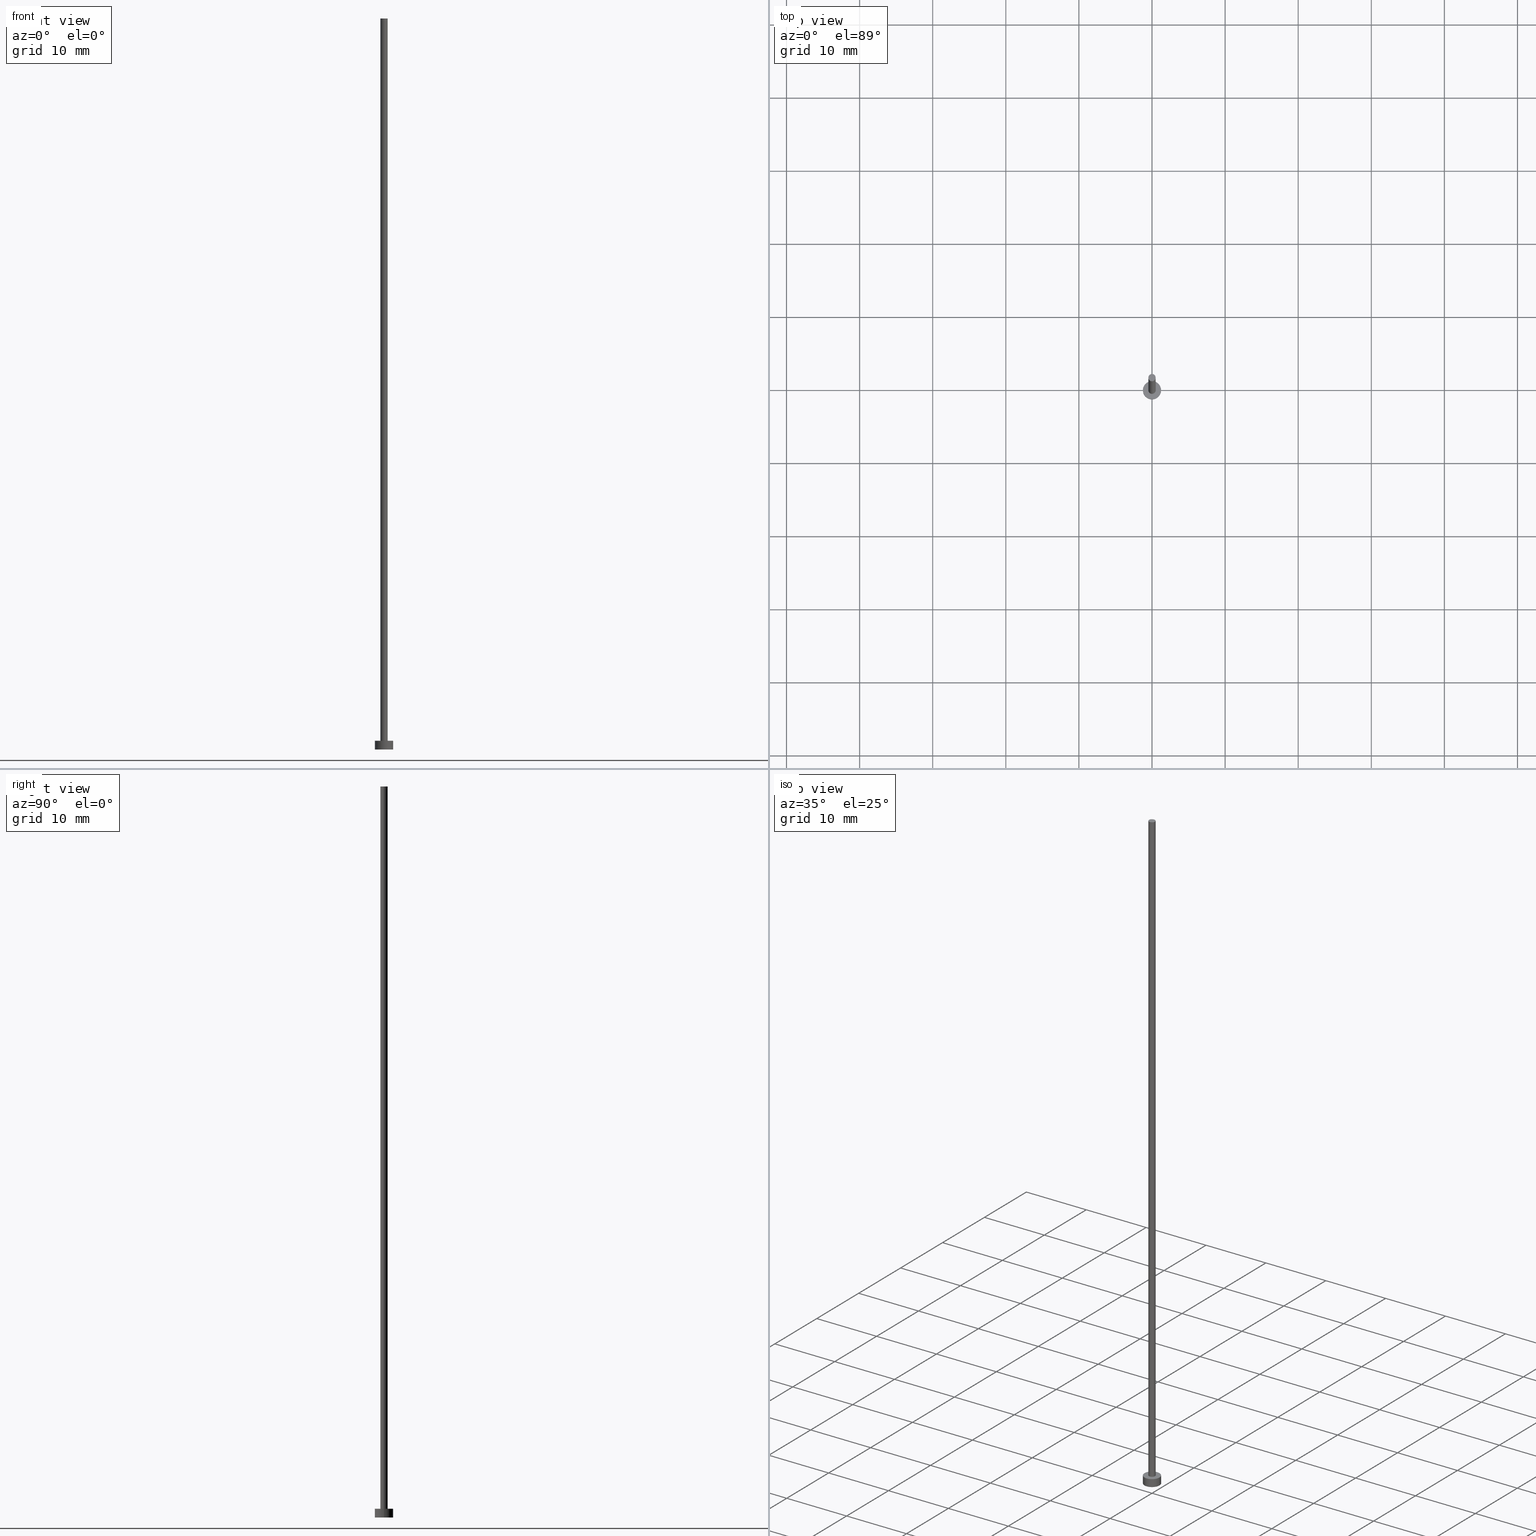
[diagram: canonical four-view strip — front | top / right | iso, engineering-drawing reading convention]
A machine part, canonical four-view strip (front | top / right | iso — engineering-drawing reading convention). The complete STEP part file that produces these views, byte-faithful:
ISO-10303-21;
HEADER;
FILE_DESCRIPTION (( 'STEP AP203' ),
    '1' );
FILE_NAME ('a3bb.STEP',
    '2025-01-24T12:53:52',
    ( '' ),
    ( '' ),
    'SwSTEP 2.0',
    'SolidWorks 2019',
    '' );
FILE_SCHEMA (( 'CONFIG_CONTROL_DESIGN' ));
ENDSEC;

DATA;
#1 = VERTEX_POINT ( 'NONE', #65 ) ;
#2 = CARTESIAN_POINT ( 'NONE',  ( 0.000000000000000000, 0.000000000000000000, 100.0000000000000000 ) ) ;
#3 = CARTESIAN_POINT ( 'NONE',  ( 0.000000000000000000, 0.000000000000000000, 0.000000000000000000 ) ) ;
#4 = CARTESIAN_POINT ( 'NONE',  ( 1.250000000000000000, 1.530808498934191571E-16, 1.199999999999999956 ) ) ;
#5 = FACE_OUTER_BOUND ( 'NONE', #14, .T. ) ;
#6 = CYLINDRICAL_SURFACE ( 'NONE', #232, 1.250000000000000000 ) ;
#7 = AXIS2_PLACEMENT_3D ( 'NONE', #183, #46, #67 ) ;
#8 = DIRECTION ( 'NONE',  ( 1.000000000000000000, 0.000000000000000000, 0.000000000000000000 ) ) ;
#9 = APPROVAL_STATUS ( 'not_yet_approved' ) ;
#10 = ADVANCED_FACE ( 'NONE', ( #157 ), #105, .T. ) ;
#11 = DATE_AND_TIME ( #150, #161 ) ;
#12 = ORIENTED_EDGE ( 'NONE', *, *, #212, .F. ) ;
#13 = VECTOR ( 'NONE', #164, 1000.000000000000000 ) ;
#14 = EDGE_LOOP ( 'NONE', ( #117, #103 ) ) ;
#15 = ORIENTED_EDGE ( 'NONE', *, *, #143, .F. ) ;
#16 = VERTEX_POINT ( 'NONE', #251 ) ;
#17 = ADVANCED_FACE ( 'NONE', ( #61 ), #236, .T. ) ;
#18 = VECTOR ( 'NONE', #221, 1000.000000000000000 ) ;
#19 = VERTEX_POINT ( 'NONE', #139 ) ;
#20 = DIRECTION ( 'NONE',  ( -0.000000000000000000, -0.000000000000000000, -1.000000000000000000 ) ) ;
#21 = LOCAL_TIME ( 13, 53, 52.00000000000000000, #114 ) ;
#22 = DIRECTION ( 'NONE',  ( 0.000000000000000000, 0.000000000000000000, 1.000000000000000000 ) ) ;
#23 = FACE_OUTER_BOUND ( 'NONE', #33, .T. ) ;
#24 = DIRECTION ( 'NONE',  ( 1.000000000000000000, 0.000000000000000000, 0.000000000000000000 ) ) ;
#25 = LINE ( 'NONE', #87, #119 ) ;
#26 = CC_DESIGN_PERSON_AND_ORGANIZATION_ASSIGNMENT ( #134, #172, ( #239 ) ) ;
#27 = PERSON_AND_ORGANIZATION ( #88, #156 ) ;
#28 = AXIS2_PLACEMENT_3D ( 'NONE', #220, #184, #125 ) ;
#29 = APPLICATION_CONTEXT ( 'configuration controlled 3d designs of mechanical parts and assemblies' ) ;
#30 = EDGE_CURVE ( 'NONE', #255, #219, #165, .T. ) ;
#31 = APPROVAL_DATE_TIME ( #208, #247 ) ;
#32 = DIRECTION ( 'NONE',  ( 0.000000000000000000, 0.000000000000000000, 1.000000000000000000 ) ) ;
#33 = EDGE_LOOP ( 'NONE', ( #137, #39 ) ) ;
#34 = AXIS2_PLACEMENT_3D ( 'NONE', #102, #218, #235 ) ;
#35 = COORDINATED_UNIVERSAL_TIME_OFFSET ( 1, 0, .AHEAD. ) ;
#36 = ORIENTED_EDGE ( 'NONE', *, *, #106, .T. ) ;
#37 = APPROVAL ( #94, 'NEUR�EN�' ) ;
#38 = CIRCLE ( 'NONE', #129, 0.5000000000000000000 ) ;
#39 = ORIENTED_EDGE ( 'NONE', *, *, #203, .F. ) ;
#40 = ADVANCED_BREP_SHAPE_REPRESENTATION ( 'a3bb', ( #57, #229 ), #253 ) ;
#41 = ADVANCED_FACE ( 'NONE', ( #62, #140 ), #217, .T. ) ;
#42 = CARTESIAN_POINT ( 'NONE',  ( 0.000000000000000000, 0.000000000000000000, 100.0000000000000000 ) ) ;
#43 = ORIENTED_EDGE ( 'NONE', *, *, #143, .T. ) ;
#44 = AXIS2_PLACEMENT_3D ( 'NONE', #194, #176, #81 ) ;
#45 = CARTESIAN_POINT ( 'NONE',  ( -1.250000000000000000, 0.000000000000000000, 1.199999999999999956 ) ) ;
#46 = DIRECTION ( 'NONE',  ( -0.000000000000000000, -0.000000000000000000, -1.000000000000000000 ) ) ;
#47 = CC_DESIGN_APPROVAL ( #247, ( #209 ) ) ;
#48 = DIRECTION ( 'NONE',  ( 0.000000000000000000, 0.000000000000000000, 1.000000000000000000 ) ) ;
#49 = CARTESIAN_POINT ( 'NONE',  ( 1.250000000000000000, 1.530808498934191571E-16, 0.000000000000000000 ) ) ;
#50 = CARTESIAN_POINT ( 'NONE',  ( 0.000000000000000000, 0.000000000000000000, 1.199999999999999956 ) ) ;
#51 = PRODUCT ( 'a3bb', 'a3bb', '', ( #96 ) ) ;
#52 = CALENDAR_DATE ( 2025, 24, 1 ) ;
#53 = AXIS2_PLACEMENT_3D ( 'NONE', #200, #89, #201 ) ;
#54 = APPLICATION_PROTOCOL_DEFINITION ( 'international standard', 'config_control_design', 1994, #29 ) ;
#55 = AXIS2_PLACEMENT_3D ( 'NONE', #66, #110, #224 ) ;
#56 = PERSON_AND_ORGANIZATION ( #88, #156 ) ;
#57 = MANIFOLD_SOLID_BREP ( 'P�idat vysunut�m3', #148 ) ;
#58 = COORDINATED_UNIVERSAL_TIME_OFFSET ( 1, 0, .AHEAD. ) ;
#59 = AXIS2_PLACEMENT_3D ( 'NONE', #2, #178, #101 ) ;
#60 = EDGE_CURVE ( 'NONE', #219, #255, #144, .T. ) ;
#61 = FACE_OUTER_BOUND ( 'NONE', #170, .T. ) ;
#62 = FACE_BOUND ( 'NONE', #192, .T. ) ;
#63 = PRODUCT_RELATED_PRODUCT_CATEGORY ( 'detail', '', ( #51 ) ) ;
#64 = CARTESIAN_POINT ( 'NONE',  ( 0.000000000000000000, 0.000000000000000000, 1.199999999999999956 ) ) ;
#65 = CARTESIAN_POINT ( 'NONE',  ( 0.5000000000000000000, 6.123233995736766036E-17, 1.199999999999999956 ) ) ;
#66 = CARTESIAN_POINT ( 'NONE',  ( 0.000000000000000000, 0.000000000000000000, 1.199999999999999956 ) ) ;
#67 = DIRECTION ( 'NONE',  ( -1.000000000000000000, 0.000000000000000000, 0.000000000000000000 ) ) ;
#68 = DESIGN_CONTEXT ( 'detailed design', #29, 'design' ) ;
#69 = PLANE ( 'NONE',  #53 ) ;
#70 = CIRCLE ( 'NONE', #138, 1.250000000000000000 ) ;
#71 = LINE ( 'NONE', #202, #13 ) ;
#72 = EDGE_CURVE ( 'NONE', #19, #80, #79, .T. ) ;
#73 = CARTESIAN_POINT ( 'NONE',  ( 0.000000000000000000, 0.000000000000000000, 0.000000000000000000 ) ) ;
#74 = PERSON_AND_ORGANIZATION ( #88, #156 ) ;
#75 = DATE_AND_TIME ( #227, #21 ) ;
#76 = APPROVAL_ROLE ( '' ) ;
#77 = CC_DESIGN_SECURITY_CLASSIFICATION ( #189, ( #209 ) ) ;
#78 = APPROVAL_PERSON_ORGANIZATION ( #127, #37, #76 ) ;
#79 = CIRCLE ( 'NONE', #28, 1.250000000000000000 ) ;
#80 = VERTEX_POINT ( 'NONE', #122 ) ;
#81 = DIRECTION ( 'NONE',  ( 1.000000000000000000, 0.000000000000000000, 0.000000000000000000 ) ) ;
#82 = ORIENTED_EDGE ( 'NONE', *, *, #133, .F. ) ;
#83 = EDGE_LOOP ( 'NONE', ( #187, #237, #233, #15 ) ) ;
#84 = ORIENTED_EDGE ( 'NONE', *, *, #72, .F. ) ;
#85 = LINE ( 'NONE', #4, #18 ) ;
#86 = AXIS2_PLACEMENT_3D ( 'NONE', #3, #147, #242 ) ;
#87 = CARTESIAN_POINT ( 'NONE',  ( 0.5000000000000000000, 6.123233995736766036E-17, 100.0000000000000000 ) ) ;
#88 = PERSON ( 'NEUR�EN�', 'NEUR�EN�', 'NEUR�EN�', ('NEUR�EN�'), ('NEUR�EN�'), ('NEUR�EN�') ) ;
#89 = DIRECTION ( 'NONE',  ( 0.000000000000000000, 0.000000000000000000, 1.000000000000000000 ) ) ;
#90 = EDGE_CURVE ( 'NONE', #1, #16, #244, .T. ) ;
#91 = CARTESIAN_POINT ( 'NONE',  ( 0.000000000000000000, 0.000000000000000000, 1.199999999999999956 ) ) ;
#92 = AXIS2_PLACEMENT_3D ( 'NONE', #50, #22, #204 ) ;
#93 = COORDINATED_UNIVERSAL_TIME_OFFSET ( 1, 0, .AHEAD. ) ;
#94 = APPROVAL_STATUS ( 'not_yet_approved' ) ;
#95 = CC_DESIGN_PERSON_AND_ORGANIZATION_ASSIGNMENT ( #188, #210, ( #209 ) ) ;
#96 = MECHANICAL_CONTEXT ( 'NONE', #195, 'mechanical' ) ;
#97 = VERTEX_POINT ( 'NONE', #49 ) ;
#98 = DATE_TIME_ROLE ( 'classification_date' ) ;
#99 = EDGE_CURVE ( 'NONE', #16, #1, #38, .T. ) ;
#100 = CC_DESIGN_DATE_AND_TIME_ASSIGNMENT ( #75, #166, ( #239 ) ) ;
#101 = DIRECTION ( 'NONE',  ( -1.000000000000000000, 0.000000000000000000, 0.000000000000000000 ) ) ;
#102 = CARTESIAN_POINT ( 'NONE',  ( 0.000000000000000000, 0.000000000000000000, 100.0000000000000000 ) ) ;
#103 = ORIENTED_EDGE ( 'NONE', *, *, #30, .T. ) ;
#104 = AXIS2_PLACEMENT_3D ( 'NONE', #64, #197, #141 ) ;
#105 = CYLINDRICAL_SURFACE ( 'NONE', #59, 0.5000000000000000000 ) ;
#106 = EDGE_CURVE ( 'NONE', #19, #173, #160, .T. ) ;
#107 = PLANE ( 'NONE',  #181 ) ;
#108 = CC_DESIGN_APPROVAL ( #37, ( #239 ) ) ;
#109 = CYLINDRICAL_SURFACE ( 'NONE', #7, 1.250000000000000000 ) ;
#110 = DIRECTION ( 'NONE',  ( 0.000000000000000000, 0.000000000000000000, 1.000000000000000000 ) ) ;
#111 = DIRECTION ( 'NONE',  ( -1.000000000000000000, 0.000000000000000000, 0.000000000000000000 ) ) ;
#112 = LOCAL_TIME ( 13, 53, 52.00000000000000000, #58 ) ;
#113 = DIRECTION ( 'NONE',  ( 1.000000000000000000, 0.000000000000000000, 0.000000000000000000 ) ) ;
#114 = COORDINATED_UNIVERSAL_TIME_OFFSET ( 1, 0, .AHEAD. ) ;
#115 = AXIS2_PLACEMENT_3D ( 'NONE', #42, #223, #113 ) ;
#116 = CALENDAR_DATE ( 2025, 24, 1 ) ;
#117 = ORIENTED_EDGE ( 'NONE', *, *, #60, .T. ) ;
#118 = ORIENTED_EDGE ( 'NONE', *, *, #241, .F. ) ;
#119 = VECTOR ( 'NONE', #222, 1000.000000000000000 ) ;
#120 = ORIENTED_EDGE ( 'NONE', *, *, #99, .F. ) ;
#121 = ORIENTED_EDGE ( 'NONE', *, *, #133, .T. ) ;
#122 = CARTESIAN_POINT ( 'NONE',  ( 1.250000000000000000, 1.530808498934191571E-16, 1.199999999999999956 ) ) ;
#123 = CARTESIAN_POINT ( 'NONE',  ( -0.5000000000000000000, 0.000000000000000000, 100.0000000000000000 ) ) ;
#124 = CARTESIAN_POINT ( 'NONE',  ( 0.000000000000000000, 0.000000000000000000, 1.199999999999999956 ) ) ;
#125 = DIRECTION ( 'NONE',  ( 1.000000000000000000, 0.000000000000000000, 0.000000000000000000 ) ) ;
#126 = DIRECTION ( 'NONE',  ( -0.000000000000000000, -0.000000000000000000, -1.000000000000000000 ) ) ;
#127 = PERSON_AND_ORGANIZATION ( #88, #156 ) ;
#128 = CC_DESIGN_PERSON_AND_ORGANIZATION_ASSIGNMENT ( #56, #186, ( #51 ) ) ;
#129 = AXIS2_PLACEMENT_3D ( 'NONE', #124, #240, #24 ) ;
#130 = APPROVAL_DATE_TIME ( #231, #196 ) ;
#131 = PERSON_AND_ORGANIZATION ( #88, #156 ) ;
#132 = CIRCLE ( 'NONE', #55, 1.250000000000000000 ) ;
#133 = EDGE_CURVE ( 'NONE', #80, #97, #85, .T. ) ;
#134 = PERSON_AND_ORGANIZATION ( #88, #156 ) ;
#135 = VECTOR ( 'NONE', #20, 1000.000000000000000 ) ;
#136 = PERSON_AND_ORGANIZATION_ROLE ( 'classification_officer' ) ;
#137 = ORIENTED_EDGE ( 'NONE', *, *, #230, .F. ) ;
#138 = AXIS2_PLACEMENT_3D ( 'NONE', #73, #149, #179 ) ;
#139 = CARTESIAN_POINT ( 'NONE',  ( -1.250000000000000000, 0.000000000000000000, 1.199999999999999956 ) ) ;
#140 = FACE_OUTER_BOUND ( 'NONE', #215, .T. ) ;
#141 = DIRECTION ( 'NONE',  ( 1.000000000000000000, 0.000000000000000000, -0.000000000000000000 ) ) ;
#142 = ADVANCED_FACE ( 'NONE', ( #243 ), #6, .T. ) ;
#143 = EDGE_CURVE ( 'NONE', #219, #16, #71, .T. ) ;
#144 = CIRCLE ( 'NONE', #115, 0.5000000000000000000 ) ;
#145 = CC_DESIGN_APPROVAL ( #196, ( #189 ) ) ;
#146 =( NAMED_UNIT ( * ) PLANE_ANGLE_UNIT ( ) SI_UNIT ( $, .RADIAN. ) );
#147 = DIRECTION ( 'NONE',  ( 0.000000000000000000, 0.000000000000000000, 1.000000000000000000 ) ) ;
#148 = CLOSED_SHELL ( 'NONE', ( #10, #142, #185, #41, #167, #17, #174 ) ) ;
#149 = DIRECTION ( 'NONE',  ( 0.000000000000000000, 0.000000000000000000, 1.000000000000000000 ) ) ;
#150 = CALENDAR_DATE ( 2025, 24, 1 ) ;
#151 = APPROVAL_ROLE ( '' ) ;
#152 = DATE_AND_TIME ( #246, #214 ) ;
#153 = SECURITY_CLASSIFICATION_LEVEL ( 'unclassified' ) ;
#154 = COORDINATED_UNIVERSAL_TIME_OFFSET ( 1, 0, .AHEAD. ) ;
#155 = ORIENTED_EDGE ( 'NONE', *, *, #241, .T. ) ;
#156 = ORGANIZATION ( 'NEUR�EN�', 'NEUR�EN�', '' ) ;
#157 = FACE_OUTER_BOUND ( 'NONE', #83, .T. ) ;
#158 = EDGE_LOOP ( 'NONE', ( #118, #121, #177, #234 ) ) ;
#159 = DIRECTION ( 'NONE',  ( 1.000000000000000000, 0.000000000000000000, -0.000000000000000000 ) ) ;
#160 = LINE ( 'NONE', #45, #135 ) ;
#161 = LOCAL_TIME ( 13, 53, 52.00000000000000000, #35 ) ;
#162 = CARTESIAN_POINT ( 'NONE',  ( 0.5000000000000000000, 6.123233995736766036E-17, 100.0000000000000000 ) ) ;
#163 = CARTESIAN_POINT ( 'NONE',  ( -1.250000000000000000, 0.000000000000000000, 0.000000000000000000 ) ) ;
#164 = DIRECTION ( 'NONE',  ( -0.000000000000000000, -0.000000000000000000, -1.000000000000000000 ) ) ;
#165 = CIRCLE ( 'NONE', #44, 0.5000000000000000000 ) ;
#166 = DATE_TIME_ROLE ( 'creation_date' ) ;
#167 = ADVANCED_FACE ( 'NONE', ( #23 ), #107, .F. ) ;
#168 = APPROVAL_PERSON_ORGANIZATION ( #131, #247, #151 ) ;
#169 = APPROVAL_DATE_TIME ( #152, #37 ) ;
#170 = EDGE_LOOP ( 'NONE', ( #12, #211, #43, #175 ) ) ;
#171 = LOCAL_TIME ( 13, 53, 52.00000000000000000, #154 ) ;
#172 = PERSON_AND_ORGANIZATION_ROLE ( 'creator' ) ;
#173 = VERTEX_POINT ( 'NONE', #163 ) ;
#174 = ADVANCED_FACE ( 'NONE', ( #5 ), #69, .T. ) ;
#175 = ORIENTED_EDGE ( 'NONE', *, *, #99, .T. ) ;
#176 = DIRECTION ( 'NONE',  ( 0.000000000000000000, 0.000000000000000000, 1.000000000000000000 ) ) ;
#177 = ORIENTED_EDGE ( 'NONE', *, *, #203, .T. ) ;
#178 = DIRECTION ( 'NONE',  ( -0.000000000000000000, -0.000000000000000000, -1.000000000000000000 ) ) ;
#179 = DIRECTION ( 'NONE',  ( 1.000000000000000000, 0.000000000000000000, 0.000000000000000000 ) ) ;
#180 = CARTESIAN_POINT ( 'NONE',  ( 0.000000000000000000, 0.000000000000000000, 0.000000000000000000 ) ) ;
#181 = AXIS2_PLACEMENT_3D ( 'NONE', #180, #48, #159 ) ;
#182 = APPROVAL_PERSON_ORGANIZATION ( #27, #196, #226 ) ;
#183 = CARTESIAN_POINT ( 'NONE',  ( 0.000000000000000000, 0.000000000000000000, 1.199999999999999956 ) ) ;
#184 = DIRECTION ( 'NONE',  ( 0.000000000000000000, 0.000000000000000000, 1.000000000000000000 ) ) ;
#185 = ADVANCED_FACE ( 'NONE', ( #205 ), #109, .T. ) ;
#186 = PERSON_AND_ORGANIZATION_ROLE ( 'design_owner' ) ;
#187 = ORIENTED_EDGE ( 'NONE', *, *, #30, .F. ) ;
#188 = PERSON_AND_ORGANIZATION ( #88, #156 ) ;
#189 = SECURITY_CLASSIFICATION ( '', '', #153 ) ;
#190 = PERSON_AND_ORGANIZATION ( #88, #156 ) ;
#191 = APPLICATION_PROTOCOL_DEFINITION ( 'international standard', 'config_control_design', 1994, #195 ) ;
#192 = EDGE_LOOP ( 'NONE', ( #120, #213 ) ) ;
#193 = CIRCLE ( 'NONE', #86, 1.250000000000000000 ) ;
#194 = CARTESIAN_POINT ( 'NONE',  ( 0.000000000000000000, 0.000000000000000000, 100.0000000000000000 ) ) ;
#195 = APPLICATION_CONTEXT ( 'configuration controlled 3d designs of mechanical parts and assemblies' ) ;
#196 = APPROVAL ( #9, 'NEUR�EN�' ) ;
#197 = DIRECTION ( 'NONE',  ( 0.000000000000000000, 0.000000000000000000, 1.000000000000000000 ) ) ;
#198 = ORIENTED_EDGE ( 'NONE', *, *, #230, .T. ) ;
#199 = EDGE_LOOP ( 'NONE', ( #82, #84, #36, #198 ) ) ;
#200 = CARTESIAN_POINT ( 'NONE',  ( 0.000000000000000000, 0.000000000000000000, 100.0000000000000000 ) ) ;
#201 = DIRECTION ( 'NONE',  ( 1.000000000000000000, 0.000000000000000000, -0.000000000000000000 ) ) ;
#202 = CARTESIAN_POINT ( 'NONE',  ( -0.5000000000000000000, 0.000000000000000000, 100.0000000000000000 ) ) ;
#203 = EDGE_CURVE ( 'NONE', #97, #173, #193, .T. ) ;
#204 = DIRECTION ( 'NONE',  ( 1.000000000000000000, 0.000000000000000000, 0.000000000000000000 ) ) ;
#205 = FACE_OUTER_BOUND ( 'NONE', #199, .T. ) ;
#206 = PERSON_AND_ORGANIZATION_ROLE ( 'creator' ) ;
#207 = SHAPE_DEFINITION_REPRESENTATION ( #225, #40 ) ;
#208 = DATE_AND_TIME ( #116, #112 ) ;
#209 = PRODUCT_DEFINITION_FORMATION_WITH_SPECIFIED_SOURCE ( 'LIBOVOLN�', '', #51, .NOT_KNOWN. ) ;
#210 = PERSON_AND_ORGANIZATION_ROLE ( 'design_supplier' ) ;
#211 = ORIENTED_EDGE ( 'NONE', *, *, #60, .F. ) ;
#212 = EDGE_CURVE ( 'NONE', #255, #1, #25, .T. ) ;
#213 = ORIENTED_EDGE ( 'NONE', *, *, #90, .F. ) ;
#214 = LOCAL_TIME ( 13, 53, 52.00000000000000000, #93 ) ;
#215 = EDGE_LOOP ( 'NONE', ( #252, #155 ) ) ;
#216 = CC_DESIGN_DATE_AND_TIME_ASSIGNMENT ( #11, #98, ( #189 ) ) ;
#217 = PLANE ( 'NONE',  #104 ) ;
#218 = DIRECTION ( 'NONE',  ( -0.000000000000000000, -0.000000000000000000, -1.000000000000000000 ) ) ;
#219 = VERTEX_POINT ( 'NONE', #123 ) ;
#220 = CARTESIAN_POINT ( 'NONE',  ( 0.000000000000000000, 0.000000000000000000, 1.199999999999999956 ) ) ;
#221 = DIRECTION ( 'NONE',  ( -0.000000000000000000, -0.000000000000000000, -1.000000000000000000 ) ) ;
#222 = DIRECTION ( 'NONE',  ( -0.000000000000000000, -0.000000000000000000, -1.000000000000000000 ) ) ;
#223 = DIRECTION ( 'NONE',  ( 0.000000000000000000, 0.000000000000000000, 1.000000000000000000 ) ) ;
#224 = DIRECTION ( 'NONE',  ( 1.000000000000000000, 0.000000000000000000, 0.000000000000000000 ) ) ;
#225 = PRODUCT_DEFINITION_SHAPE ( 'NONE', 'NONE',  #239 ) ;
#226 = APPROVAL_ROLE ( '' ) ;
#227 = CALENDAR_DATE ( 2025, 24, 1 ) ;
#228 = CC_DESIGN_PERSON_AND_ORGANIZATION_ASSIGNMENT ( #74, #206, ( #209 ) ) ;
#229 = AXIS2_PLACEMENT_3D ( 'NONE', #248, #32, #8 ) ;
#230 = EDGE_CURVE ( 'NONE', #173, #97, #70, .T. ) ;
#231 = DATE_AND_TIME ( #52, #171 ) ;
#232 = AXIS2_PLACEMENT_3D ( 'NONE', #91, #126, #111 ) ;
#233 = ORIENTED_EDGE ( 'NONE', *, *, #90, .T. ) ;
#234 = ORIENTED_EDGE ( 'NONE', *, *, #106, .F. ) ;
#235 = DIRECTION ( 'NONE',  ( -1.000000000000000000, 0.000000000000000000, 0.000000000000000000 ) ) ;
#236 = CYLINDRICAL_SURFACE ( 'NONE', #34, 0.5000000000000000000 ) ;
#237 = ORIENTED_EDGE ( 'NONE', *, *, #212, .T. ) ;
#238 =( LENGTH_UNIT ( ) NAMED_UNIT ( * ) SI_UNIT ( .MILLI., .METRE. ) );
#239 = PRODUCT_DEFINITION ( 'NEZN�M�', '', #209, #68 ) ;
#240 = DIRECTION ( 'NONE',  ( 0.000000000000000000, 0.000000000000000000, 1.000000000000000000 ) ) ;
#241 = EDGE_CURVE ( 'NONE', #80, #19, #132, .T. ) ;
#242 = DIRECTION ( 'NONE',  ( 1.000000000000000000, 0.000000000000000000, 0.000000000000000000 ) ) ;
#243 = FACE_OUTER_BOUND ( 'NONE', #158, .T. ) ;
#244 = CIRCLE ( 'NONE', #92, 0.5000000000000000000 ) ;
#245 = APPROVAL_STATUS ( 'not_yet_approved' ) ;
#246 = CALENDAR_DATE ( 2025, 24, 1 ) ;
#247 = APPROVAL ( #245, 'NEUR�EN�' ) ;
#248 = CARTESIAN_POINT ( 'NONE',  ( 0.000000000000000000, 0.000000000000000000, 0.000000000000000000 ) ) ;
#249 =( NAMED_UNIT ( * ) SI_UNIT ( $, .STERADIAN. ) SOLID_ANGLE_UNIT ( ) );
#250 = UNCERTAINTY_MEASURE_WITH_UNIT (LENGTH_MEASURE( 1.000000000000000082E-05 ), #238, 'distance_accuracy_value', 'NONE');
#251 = CARTESIAN_POINT ( 'NONE',  ( -0.5000000000000000000, 0.000000000000000000, 1.199999999999999956 ) ) ;
#252 = ORIENTED_EDGE ( 'NONE', *, *, #72, .T. ) ;
#253 =( GEOMETRIC_REPRESENTATION_CONTEXT ( 3 ) GLOBAL_UNCERTAINTY_ASSIGNED_CONTEXT ( ( #250 ) ) GLOBAL_UNIT_ASSIGNED_CONTEXT ( ( #238, #146, #249 ) ) REPRESENTATION_CONTEXT ( 'NONE', 'WORKASPACE' ) );
#254 = CC_DESIGN_PERSON_AND_ORGANIZATION_ASSIGNMENT ( #190, #136, ( #189 ) ) ;
#255 = VERTEX_POINT ( 'NONE', #162 ) ;
ENDSEC;
END-ISO-10303-21;
